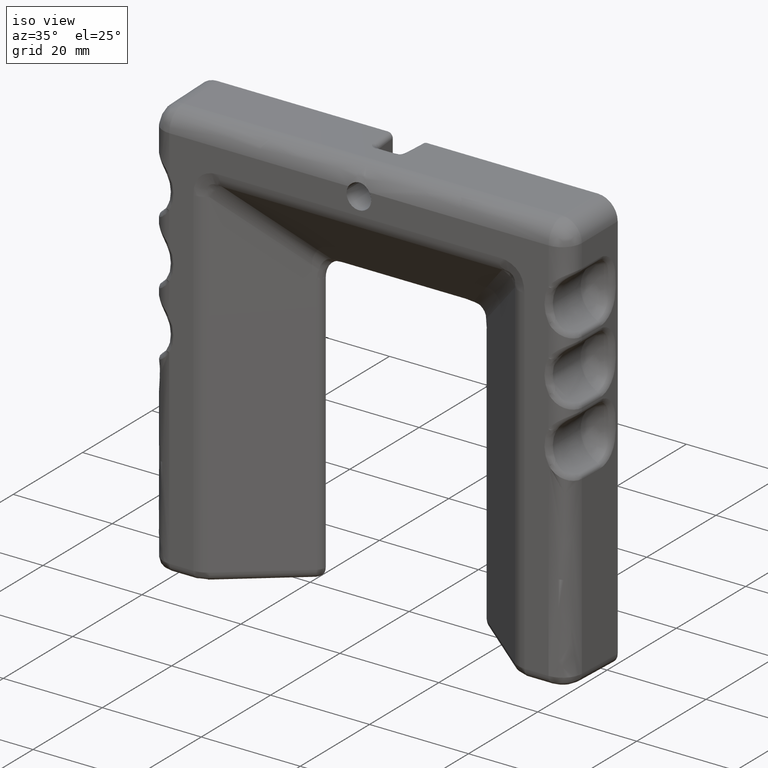
[diagram: clean part render]
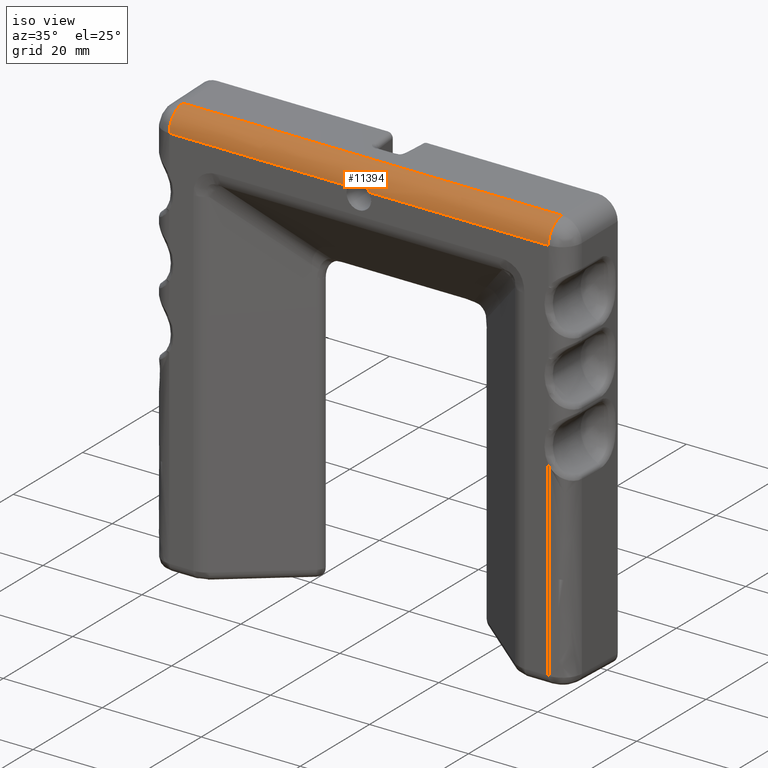
[diagram: same view with one face highlighted and labeled with its STEP entity id]
A machine part, iso view. The second image highlights one B-rep face of the part: STEP entity #11394.
In plain terms, the highlighted face is a freeform B-spline surface patch.
Its self-contained STEP definition (entity closure, byte-faithful):
#2148=CARTESIAN_POINT('',(-2.120094071557265,-14.499999999999179,21.824840038557149));
#2149=VERTEX_POINT('',#2148);
#2227=CARTESIAN_POINT('',(2.120094071557220,-14.499999999999259,21.824840038557149));
#2228=VERTEX_POINT('',#2227);
#2238=CARTESIAN_POINT('',(-2.120094071557265,-14.499999999999179,21.824840038557149));
#2239=CARTESIAN_POINT('',(-2.006792594072430,-14.499999999999259,22.006152335683229));
#2240=CARTESIAN_POINT('',(-1.873396936129676,-14.487863741472260,22.168760558860910));
#2241=CARTESIAN_POINT('',(-1.682354904845840,-14.465545773281590,22.349987997760248));
#2242=CARTESIAN_POINT('',(-1.642911719586175,-14.460716432449651,22.385113598219402));
#2243=CARTESIAN_POINT('',(-1.561495610458261,-14.450504846199490,22.453085675300930));
#2244=CARTESIAN_POINT('',(-1.519629337045776,-14.445135919701331,22.485827047061669));
#2245=CARTESIAN_POINT('',(-1.391957848884680,-14.428709828867850,22.579322697001039));
#2246=CARTESIAN_POINT('',(-1.303576059758548,-14.417274496862790,22.635806229509281));
#2247=CARTESIAN_POINT('',(-1.120286910927301,-14.394861901771620,22.737394920614712));
#2248=CARTESIAN_POINT('',(-1.025380033546658,-14.383880897210100,22.782500143579039));
#2249=CARTESIAN_POINT('',(-0.877879470649205,-14.368724207345050,22.841394971954351));
#2250=CARTESIAN_POINT('',(-0.827758032608950,-14.363884694851651,22.859579548491709));
#2251=CARTESIAN_POINT('',(-0.727193618669374,-14.354921951525490,22.892485830088841));
#2252=CARTESIAN_POINT('',(-0.676587182793909,-14.350780596030059,22.907279947824300));
#2253=CARTESIAN_POINT('',(-0.523803131499970,-14.339533284841311,22.946773003736620));
#2254=CARTESIAN_POINT('',(-0.420664054577388,-14.333610869536130,22.966602359373699));
#2255=CARTESIAN_POINT('',(-0.264001386998161,-14.327585556240599,22.986578900659769));
#2256=CARTESIAN_POINT('',(-0.211454002255575,-14.326051767154979,22.991604894219709));
#2257=CARTESIAN_POINT('',(-0.105691103105924,-14.323995425818380,22.998326867064002));
#2258=CARTESIAN_POINT('',(-0.052299026706624,-14.323473418443550,23.000021309237251));
#2259=CARTESIAN_POINT('',(0.214240573596240,-14.323506478616009,22.999913745215959));
#2260=CARTESIAN_POINT('',(0.423004430580602,-14.332072921915650,22.972993651378641));
#2261=CARTESIAN_POINT('',(0.729748335794178,-14.354714360951540,22.893454606513352));
#2262=CARTESIAN_POINT('',(0.831385358200129,-14.363928587536430,22.860065986593820));
#2263=CARTESIAN_POINT('',(1.027116595701299,-14.384077784173369,22.781697739346878));
#2264=CARTESIAN_POINT('',(1.121834254848189,-14.395044032201540,22.736623203965120));
#2265=CARTESIAN_POINT('',(1.305188876309102,-14.417478913990619,22.634824922335259));
#2266=CARTESIAN_POINT('',(1.393826182186578,-14.428951534815370,22.578102726621861));
#2267=CARTESIAN_POINT('',(1.564924345214817,-14.450962168228671,22.452504587009820));
#2268=CARTESIAN_POINT('',(1.645808097367337,-14.461285423861909,22.384751646950019));
#2269=CARTESIAN_POINT('',(1.873658171759046,-14.487875777762740,22.168321705035080));
#2270=CARTESIAN_POINT('',(2.006755097980618,-14.499999999999259,22.006212339336230));
#2271=CARTESIAN_POINT('',(2.120094071557265,-14.499999999999259,21.824840038557149));
#2272=B_SPLINE_CURVE_WITH_KNOTS('',3,(#2238,#2239,#2240,#2241,#2242,#2243,#2244,#2245,#2246,#2247,#2248,#2249,#2250,#2251,#2252,#2253,#2254,#2255,#2256,#2257,#2258,#2259,#2260,#2261,#2262,#2263,#2264,#2265,#2266,#2267,#2268,#2269,#2270,#2271),.UNSPECIFIED.,.F.,.U.,(4,2,2,2,2,2,2,2,2,2,2,2,2,2,2,2,4),(0.0,0.125000000000001,0.156250000000001,0.187500000000000,0.250000000000000,0.312500000000001,0.343750000000001,0.375000000000001,0.437500000000001,0.468750000000001,0.500000000000001,0.625000000000001,0.687500000000001,0.750000000000001,0.812500000000001,0.875000000000001,1.0),.UNSPECIFIED.);
#2273=EDGE_CURVE('',#2149,#2228,#2272,.T.);
#10762=CARTESIAN_POINT('',(-38.324840038437053,-14.499999999999259,21.824840038557149));
#10763=VERTEX_POINT('',#10762);
#10764=CARTESIAN_POINT('',(-38.324840038437053,-10.569809625748359,25.824230819182699));
#10765=VERTEX_POINT('',#10764);
#10766=CARTESIAN_POINT('',(-38.324840038437053,-14.499999999999259,21.824840038557149));
#10767=CARTESIAN_POINT('',(-38.324840038437031,-14.500133365185309,22.180830235551291));
#10768=CARTESIAN_POINT('',(-38.324840038437081,-14.428212685151630,22.714716239835109));
#10769=CARTESIAN_POINT('',(-38.324840038437053,-14.167923753700279,23.465508273259040));
#10770=CARTESIAN_POINT('',(-38.324840038437031,-13.880834480526209,23.994079181159741));
#10771=CARTESIAN_POINT('',(-38.324840038437173,-13.436306302288671,24.572466693742019));
#10772=CARTESIAN_POINT('',(-38.324840038436989,-12.906836035642730,25.055466899596581));
#10773=CARTESIAN_POINT('',(-38.324840038436882,-12.277146240581621,25.427061689120620));
#10774=CARTESIAN_POINT('',(-38.324840038436733,-11.522788481905950,25.724446514672600));
#10775=CARTESIAN_POINT('',(-38.324840038437102,-10.958110511247620,25.817617507097090));
#10776=CARTESIAN_POINT('',(-38.324840038437053,-10.569809625748359,25.824230819182699));
#10777=B_SPLINE_CURVE_WITH_KNOTS('',3,(#10766,#10767,#10768,#10769,#10770,#10771,#10772,#10773,#10774,#10775,#10776),.UNSPECIFIED.,.F.,.U.,(4,1,1,1,1,1,1,1,4),(0.000000117018188,1.067924939757200,1.601896143075875,2.378571839360251,2.863997822517859,3.786274684716477,4.514428289440753,5.048404578804493,6.213410261880908),.UNSPECIFIED.);
#10778=EDGE_CURVE('',#10763,#10765,#10777,.T.);
#10835=CARTESIAN_POINT('',(38.324840038503353,-14.499999999999259,21.824840038557149));
#10836=VERTEX_POINT('',#10835);
#10851=CARTESIAN_POINT('',(38.324840038503353,-10.569809625748359,25.824230819182699));
#10852=VERTEX_POINT('',#10851);
#10866=CARTESIAN_POINT('',(38.324840038503353,-14.499999999999259,21.824840038557149));
#10867=CARTESIAN_POINT('',(38.324840038503368,-14.500087816075579,22.148461832133108));
#10868=CARTESIAN_POINT('',(38.324840038503318,-14.434815620835829,22.682374825083521));
#10869=CARTESIAN_POINT('',(38.324840038503403,-14.183450738552340,23.436939282029840));
#10870=CARTESIAN_POINT('',(38.324840038503233,-13.880833589719050,23.994080909240690));
#10871=CARTESIAN_POINT('',(38.324840038503780,-13.475796966439219,24.521036212178270));
#10872=CARTESIAN_POINT('',(38.324840038502579,-13.018158381530260,24.959313711224329));
#10873=CARTESIAN_POINT('',(38.324840038503730,-12.356023745002030,25.400641928106481));
#10874=CARTESIAN_POINT('',(38.324840038503908,-11.539103031401680,25.728337195438431));
#10875=CARTESIAN_POINT('',(38.324840038502487,-10.893379312584811,25.818658812072620));
#10876=CARTESIAN_POINT('',(38.324840038503353,-10.569809625748359,25.824230819182699));
#10877=B_SPLINE_CURVE_WITH_KNOTS('',3,(#10866,#10867,#10868,#10869,#10870,#10871,#10872,#10873,#10874,#10875,#10876),.UNSPECIFIED.,.F.,.U.,(4,1,1,1,1,1,1,1,4),(0.000000117018188,0.970841282195429,1.601896143075875,2.378571839360251,2.863997822517859,3.592124978501575,4.271710871351218,5.242568074734392,6.213410261880908),.UNSPECIFIED.);
#10878=EDGE_CURVE('',#10836,#10852,#10877,.T.);
#11360=CARTESIAN_POINT('',(-40.241082040360567,-14.498629299901490,21.720132245325651));
#11361=CARTESIAN_POINT('',(40.288988090474959,-14.498629299901490,21.720132245325651));
#11362=CARTESIAN_POINT('',(-40.241082040360574,-14.610914661058679,26.008137189528714));
#11363=CARTESIAN_POINT('',(40.288988090474966,-14.610914661058679,26.008137189528714));
#11364=CARTESIAN_POINT('',(-40.241082040360567,-10.325522450537919,25.821032924884591));
#11365=CARTESIAN_POINT('',(40.288988090474959,-10.325522450537919,25.821032924884591));
#11373=(BOUNDED_SURFACE()B_SPLINE_SURFACE(1,2,((#11360,#11362,#11364),(#11361,#11363,#11365)),.UNSPECIFIED.,.F.,.F.,.U.)B_SPLINE_SURFACE_WITH_KNOTS((2,2),(3,3),(0.0,80.530070130835526),(0.0,6.956997999374945),.UNSPECIFIED.)GEOMETRIC_REPRESENTATION_ITEM()RATIONAL_B_SPLINE_SURFACE(((1.0,0.681998360062498,1.0),(1.0,0.681998360062498,1.0)))REPRESENTATION_ITEM('')SURFACE());
#11374=CARTESIAN_POINT('',(-2.120094071557265,-14.499999999999179,21.824840038557149));
#11375=CARTESIAN_POINT('',(-38.324840038437053,-14.499999999999259,21.824840038557149));
#11376=QUASI_UNIFORM_CURVE('',1,(#11374,#11375),.UNSPECIFIED.,.F.,.U.);
#11377=EDGE_CURVE('',#2149,#10763,#11376,.T.);
#11378=ORIENTED_EDGE('',*,*,#11377,.F.);
#11379=ORIENTED_EDGE('',*,*,#2273,.T.);
#11380=CARTESIAN_POINT('',(38.324840038503353,-14.499999999999259,21.824840038557149));
#11381=CARTESIAN_POINT('',(2.120094071557220,-14.499999999999259,21.824840038557149));
#11382=QUASI_UNIFORM_CURVE('',1,(#11380,#11381),.UNSPECIFIED.,.F.,.U.);
#11383=EDGE_CURVE('',#10836,#2228,#11382,.T.);
#11384=ORIENTED_EDGE('',*,*,#11383,.F.);
#11385=ORIENTED_EDGE('',*,*,#10878,.T.);
#11386=CARTESIAN_POINT('',(-38.324840038437053,-10.569809625748359,25.824230819182699));
#11387=CARTESIAN_POINT('',(38.324840038503353,-10.569809625748359,25.824230819182699));
#11388=QUASI_UNIFORM_CURVE('',1,(#11386,#11387),.UNSPECIFIED.,.F.,.U.);
#11389=EDGE_CURVE('',#10765,#10852,#11388,.T.);
#11390=ORIENTED_EDGE('',*,*,#11389,.F.);
#11391=ORIENTED_EDGE('',*,*,#10778,.F.);
#11392=EDGE_LOOP('',(#11378,#11379,#11384,#11385,#11390,#11391));
#11393=FACE_OUTER_BOUND('',#11392,.T.);
#11394=ADVANCED_FACE('',(#11393),#11373,.T.);